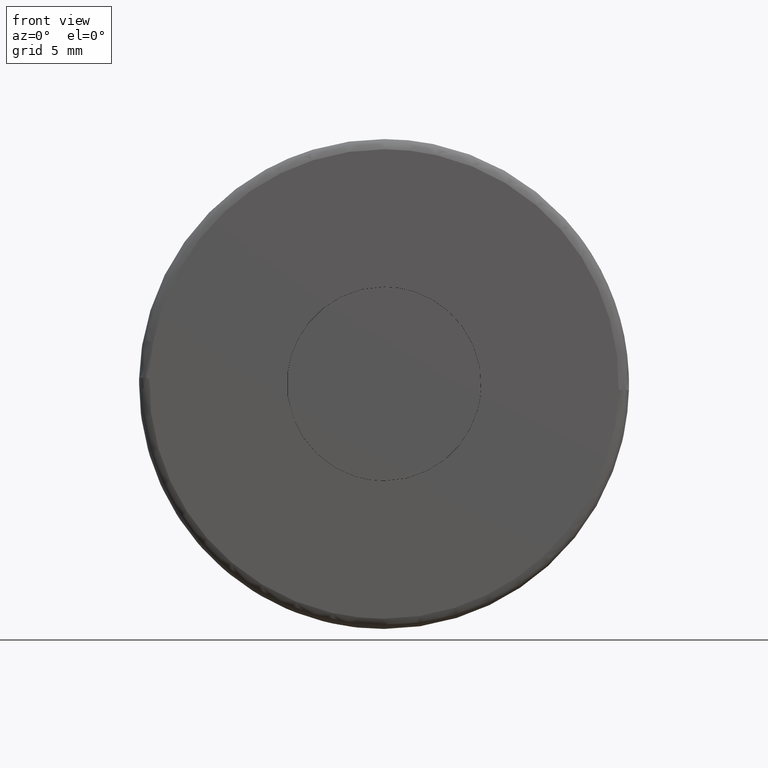
[diagram: clean part render]
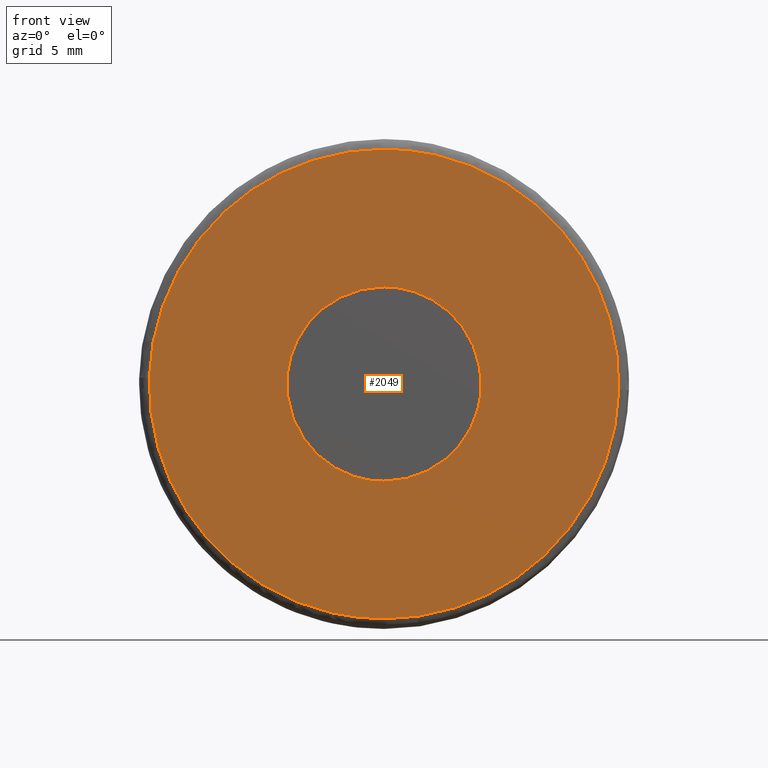
[diagram: same view with one face highlighted and labeled with its STEP entity id]
A machine part, front view. The second image highlights one B-rep face of the part: STEP entity #2049.
In plain terms, the highlighted face is a freeform B-spline surface patch.
Its self-contained STEP definition (entity closure, byte-faithful):
#963=CARTESIAN_POINT('',(-4.726725345488690,-1.561686E-016,0.561842956986043));
#964=VERTEX_POINT('',#963);
#970=CARTESIAN_POINT('',(0.0,0.0,-4.760000000000001));
#971=VERTEX_POINT('',#970);
#972=CARTESIAN_POINT('',(-4.726725345488690,-1.561686E-016,0.561842956986043));
#973=CARTESIAN_POINT('',(-4.760000000000001,0.0,0.281906809563175));
#974=CARTESIAN_POINT('',(-4.760000000000001,0.0,0.0));
#975=CARTESIAN_POINT('',(-4.760000000000001,0.0,-4.760000000000001));
#976=CARTESIAN_POINT('',(0.0,0.0,-4.760000000000001));
#984=(BOUNDED_CURVE()B_SPLINE_CURVE(2,(#972,#973,#974,#975,#976),.UNSPECIFIED.,.F.,.U.)B_SPLINE_CURVE_WITH_KNOTS((3,2,3),(0.229562473514223,0.250000000000000,0.500000000000000),.UNSPECIFIED.)CURVE()GEOMETRIC_REPRESENTATION_ITEM()RATIONAL_B_SPLINE_CURVE((0.956026754185100,0.976055948331983,1.0,0.707106781186548,1.0))REPRESENTATION_ITEM(''));
#985=EDGE_CURVE('',#964,#971,#984,.T.);
#987=CARTESIAN_POINT('',(4.751121640486563,-1.387779E-016,-0.290591048210843));
#988=VERTEX_POINT('',#987);
#989=CARTESIAN_POINT('',(0.0,0.0,-4.760000000000001));
#990=CARTESIAN_POINT('',(4.477760878424028,0.0,-4.760000000000001));
#991=CARTESIAN_POINT('',(4.751121640486563,-1.387779E-016,-0.290591048210843));
#999=(BOUNDED_CURVE()B_SPLINE_CURVE(2,(#989,#990,#991),.UNSPECIFIED.,.F.,.U.)B_SPLINE_CURVE_WITH_KNOTS((3,3),(0.500000000000000,0.739332962240157),.UNSPECIFIED.)CURVE()GEOMETRIC_REPRESENTATION_ITEM()RATIONAL_B_SPLINE_CURVE((1.0,0.719603993285287,0.976072041669321))REPRESENTATION_ITEM(''));
#1000=EDGE_CURVE('',#971,#988,#999,.T.);
#1074=CARTESIAN_POINT('',(0.0,0.0,4.760000000000001));
#1075=VERTEX_POINT('',#1074);
#1076=CARTESIAN_POINT('',(4.751121640486563,-1.387779E-016,-0.290591048210843));
#1077=CARTESIAN_POINT('',(4.760000000000001,0.0,-0.145431153326277));
#1078=CARTESIAN_POINT('',(4.760000000000001,0.0,0.0));
#1079=CARTESIAN_POINT('',(4.760000000000001,0.0,4.760000000000001));
#1080=CARTESIAN_POINT('',(0.0,0.0,4.760000000000001));
#1088=(BOUNDED_CURVE()B_SPLINE_CURVE(2,(#1076,#1077,#1078,#1079,#1080),.UNSPECIFIED.,.F.,.U.)B_SPLINE_CURVE_WITH_KNOTS((3,2,3),(0.739332962240158,0.750000000000000,1.0),.UNSPECIFIED.)CURVE()GEOMETRIC_REPRESENTATION_ITEM()RATIONAL_B_SPLINE_CURVE((0.976072041669322,0.987502787901261,1.0,0.707106781186548,1.0))REPRESENTATION_ITEM(''));
#1089=EDGE_CURVE('',#988,#1075,#1088,.T.);
#1091=CARTESIAN_POINT('',(0.0,0.0,4.760000000000001));
#1092=CARTESIAN_POINT('',(-4.227710743492712,0.0,4.760000000000001));
#1093=CARTESIAN_POINT('',(-4.726725345488691,-1.561686E-016,0.561842956986043));
#1101=(BOUNDED_CURVE()B_SPLINE_CURVE(2,(#1091,#1092,#1093),.UNSPECIFIED.,.F.,.U.)B_SPLINE_CURVE_WITH_KNOTS((3,3),(0.0,0.229562473514223),.UNSPECIFIED.)CURVE()GEOMETRIC_REPRESENTATION_ITEM()RATIONAL_B_SPLINE_CURVE((1.0,0.731050832854565,0.956026754185101))REPRESENTATION_ITEM(''));
#1102=EDGE_CURVE('',#1075,#964,#1101,.T.);
#1561=CARTESIAN_POINT('',(-11.496368177523900,-9.688065E-016,0.288996097631335));
#1562=VERTEX_POINT('',#1561);
#1563=CARTESIAN_POINT('',(0.0,-2.109424E-015,-11.500000000000000));
#1564=VERTEX_POINT('',#1563);
#1565=CARTESIAN_POINT('',(-11.496368177523902,-9.688065E-016,0.288996097631335));
#1566=CARTESIAN_POINT('',(-11.500000000000000,-2.109424E-015,0.144520869432563));
#1567=CARTESIAN_POINT('',(-11.500000000000000,-2.109424E-015,-1.535880E-016));
#1568=CARTESIAN_POINT('',(-11.500000000000000,-2.109424E-015,-11.500000000000000));
#1569=CARTESIAN_POINT('',(0.0,-2.109424E-015,-11.500000000000000));
#1577=(BOUNDED_CURVE()B_SPLINE_CURVE(2,(#1565,#1566,#1567,#1568,#1569),.UNSPECIFIED.,.F.,.U.)B_SPLINE_CURVE_WITH_KNOTS((3,2,3),(0.745579891769391,0.750000000000000,1.0),.UNSPECIFIED.)CURVE()GEOMETRIC_REPRESENTATION_ITEM()RATIONAL_B_SPLINE_CURVE((0.989826157680634,0.994821521091332,1.0,0.707106781186548,1.0))REPRESENTATION_ITEM(''));
#1578=EDGE_CURVE('',#1562,#1564,#1577,.T.);
#1595=CARTESIAN_POINT('',(11.496368177523900,-9.609969E-016,-0.288996097631335));
#1596=VERTEX_POINT('',#1595);
#1610=CARTESIAN_POINT('',(0.0,-2.109424E-015,-11.500000000000000));
#1611=CARTESIAN_POINT('',(11.214545576050746,-2.109424E-015,-11.500000000000000));
#1612=CARTESIAN_POINT('',(11.496368177523902,-9.609969E-016,-0.288996097631335));
#1620=(BOUNDED_CURVE()B_SPLINE_CURVE(2,(#1610,#1611,#1612),.UNSPECIFIED.,.F.,.U.)B_SPLINE_CURVE_WITH_KNOTS((3,3),(0.0,0.245579891769391),.UNSPECIFIED.)CURVE()GEOMETRIC_REPRESENTATION_ITEM()RATIONAL_B_SPLINE_CURVE((1.0,0.712285260095215,0.989826157680634))REPRESENTATION_ITEM(''));
#1621=EDGE_CURVE('',#1564,#1596,#1620,.T.);
#1649=CARTESIAN_POINT('',(0.0,-2.109424E-015,11.500000000000000));
#1650=VERTEX_POINT('',#1649);
#1651=CARTESIAN_POINT('',(0.0,-2.109424E-015,11.500000000000000));
#1652=CARTESIAN_POINT('',(-11.214545576050815,-2.109424E-015,11.499999999999996));
#1653=CARTESIAN_POINT('',(-11.496368177523905,-9.688065E-016,0.288996097631335));
#1661=(BOUNDED_CURVE()B_SPLINE_CURVE(2,(#1651,#1652,#1653),.UNSPECIFIED.,.F.,.U.)B_SPLINE_CURVE_WITH_KNOTS((3,3),(0.500000000000000,0.745579891769392),.UNSPECIFIED.)CURVE()GEOMETRIC_REPRESENTATION_ITEM()RATIONAL_B_SPLINE_CURVE((1.0,0.712285260095214,0.989826157680637))REPRESENTATION_ITEM(''));
#1662=EDGE_CURVE('',#1650,#1562,#1661,.T.);
#1664=CARTESIAN_POINT('',(11.496368177523902,-9.609969E-016,-0.288996097631335));
#1665=CARTESIAN_POINT('',(11.500000000000000,-2.109424E-015,-0.144520869432563));
#1666=CARTESIAN_POINT('',(11.500000000000000,-2.109424E-015,-1.535880E-016));
#1667=CARTESIAN_POINT('',(11.500000000000000,-2.109424E-015,11.500000000000000));
#1668=CARTESIAN_POINT('',(0.0,-2.109424E-015,11.500000000000000));
#1676=(BOUNDED_CURVE()B_SPLINE_CURVE(2,(#1664,#1665,#1666,#1667,#1668),.UNSPECIFIED.,.F.,.U.)B_SPLINE_CURVE_WITH_KNOTS((3,2,3),(0.245579891769391,0.250000000000000,0.500000000000000),.UNSPECIFIED.)CURVE()GEOMETRIC_REPRESENTATION_ITEM()RATIONAL_B_SPLINE_CURVE((0.989826157680634,0.994821521091332,1.0,0.707106781186548,1.0))REPRESENTATION_ITEM(''));
#1677=EDGE_CURVE('',#1596,#1650,#1676,.T.);
#2032=CARTESIAN_POINT('',(-12.644855529733510,-1.054712E-015,-12.648849955421539));
#2033=CARTESIAN_POINT('',(-12.644855529733521,-1.054712E-015,12.648850572329611));
#2034=CARTESIAN_POINT('',(12.644855940875679,-1.054712E-015,-12.648849955421539));
#2035=CARTESIAN_POINT('',(12.644855940875679,-1.054712E-015,12.648850572329611));
#2036=B_SPLINE_SURFACE_WITH_KNOTS('',1,1,((#2032,#2034),(#2033,#2035)),.UNSPECIFIED.,.F.,.F.,.U.,(2,2),(2,2),(0.0,25.297700527751150),(0.0,25.289711470609198),.UNSPECIFIED.);
#2037=ORIENTED_EDGE('',*,*,#1621,.T.);
#2038=ORIENTED_EDGE('',*,*,#1677,.T.);
#2039=ORIENTED_EDGE('',*,*,#1662,.T.);
#2040=ORIENTED_EDGE('',*,*,#1578,.T.);
#2041=EDGE_LOOP('',(#2037,#2038,#2039,#2040));
#2042=FACE_OUTER_BOUND('',#2041,.T.);
#2043=ORIENTED_EDGE('',*,*,#1000,.F.);
#2044=ORIENTED_EDGE('',*,*,#985,.F.);
#2045=ORIENTED_EDGE('',*,*,#1102,.F.);
#2046=ORIENTED_EDGE('',*,*,#1089,.F.);
#2047=EDGE_LOOP('',(#2043,#2044,#2045,#2046));
#2048=FACE_BOUND('',#2047,.T.);
#2049=ADVANCED_FACE('',(#2042,#2048),#2036,.F.);